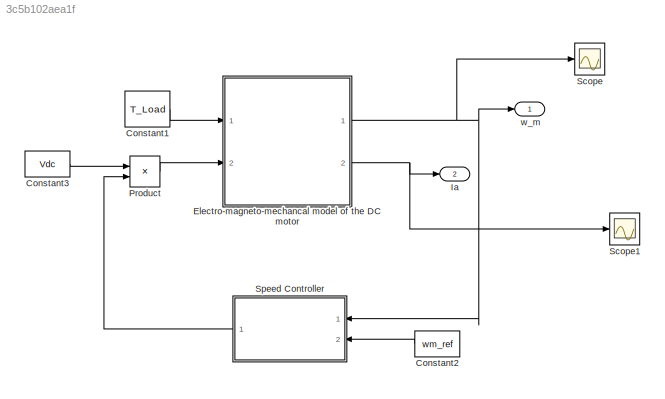
MODEL slx_3c5b102aea1f
KIND model
CONFIG AbsTol = auto
CONFIG EnableMultiTasking = off
CONFIG FixedStep = auto
CONFIG MaxStep = auto
CONFIG MinStep = auto
CONFIG RelTol = 1e-3
CONFIG SampleTimeConstraint = Unconstrained
CONFIG Solver = VariableStepAuto
CONFIG SolverName = VariableStepAuto
CONFIG StartTime = 0.0
CONFIG StopTime = 1
BLOCK [Constant] Constant1
  Value = T_Load
BLOCK [Constant] Constant2
  Value = wm_ref
BLOCK [Constant] Constant3
  Value = Vdc
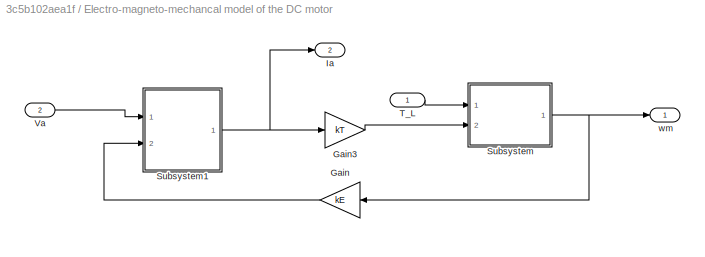
BLOCK [SubSystem] Electro-magneto-mechancal model of the DC motor
  Ports = [2, 2]
  RequestExecContextInheritance = off
BLOCK [Gain] Electro-magneto-mechancal model of the DC motor/Gain
  Gain = kE
  OutDataTypeStr = Inherit: Inherit via internal rule
  ParamDataTypeStr = Inherit: Inherit via internal rule
  SaturateOnIntegerOverflow = off
BLOCK [Gain] Electro-magneto-mechancal model of the DC motor/Gain3
  Gain = kT
  OutDataTypeStr = Inherit: Inherit via internal rule
  ParamDataTypeStr = Inherit: Inherit via internal rule
  SaturateOnIntegerOverflow = off
BLOCK [Outport] Electro-magneto-mechancal model of the DC motor/Ia
  IconDisplay = Port number
  Port = 2
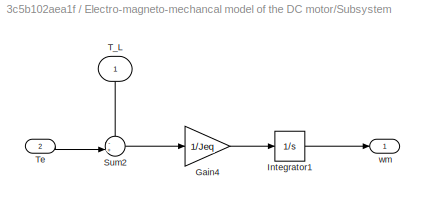
BLOCK [SubSystem] Electro-magneto-mechancal model of the DC motor/Subsystem
  Ports = [2, 1]
  RequestExecContextInheritance = off
BLOCK [Gain] Electro-magneto-mechancal model of the DC motor/Subsystem/Gain4
  Gain = 1/Jeq
  OutDataTypeStr = Inherit: Inherit via internal rule
  ParamDataTypeStr = Inherit: Inherit via internal rule
  SaturateOnIntegerOverflow = off
BLOCK [Integrator] Electro-magneto-mechancal model of the DC motor/Subsystem/Integrator1
  Ports = [1, 1]
BLOCK [Sum] Electro-magneto-mechancal model of the DC motor/Subsystem/Sum2
  IconShape = round
  InputSameDT = off
  Inputs = -+|
  OutDataTypeStr = Inherit: Inherit via internal rule
  Ports = [2, 1]
  SaturateOnIntegerOverflow = off
BLOCK [Inport] Electro-magneto-mechancal model of the DC motor/Subsystem/T_L
  IconDisplay = Port number
BLOCK [Inport] Electro-magneto-mechancal model of the DC motor/Subsystem/Te
  IconDisplay = Port number
  Port = 2
BLOCK [Outport] Electro-magneto-mechancal model of the DC motor/Subsystem/wm
  IconDisplay = Port number
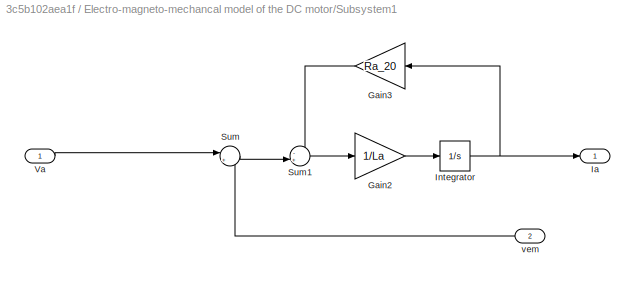
BLOCK [SubSystem] Electro-magneto-mechancal model of the DC motor/Subsystem1
  Ports = [2, 1]
  RequestExecContextInheritance = off
BLOCK [Gain] Electro-magneto-mechancal model of the DC motor/Subsystem1/Gain2
  Gain = 1/La
  OutDataTypeStr = Inherit: Inherit via internal rule
  ParamDataTypeStr = Inherit: Inherit via internal rule
  SaturateOnIntegerOverflow = off
BLOCK [Gain] Electro-magneto-mechancal model of the DC motor/Subsystem1/Gain3
  Gain = Ra_20
  OutDataTypeStr = Inherit: Inherit via internal rule
  ParamDataTypeStr = Inherit: Inherit via internal rule
  SaturateOnIntegerOverflow = off
BLOCK [Outport] Electro-magneto-mechancal model of the DC motor/Subsystem1/Ia
  IconDisplay = Port number
BLOCK [Integrator] Electro-magneto-mechancal model of the DC motor/Subsystem1/Integrator
  Ports = [1, 1]
BLOCK [Sum] Electro-magneto-mechancal model of the DC motor/Subsystem1/Sum
  IconShape = round
  InputSameDT = off
  Inputs = |+-
  OutDataTypeStr = Inherit: Inherit via internal rule
  Ports = [2, 1]
  SaturateOnIntegerOverflow = off
BLOCK [Sum] Electro-magneto-mechancal model of the DC motor/Subsystem1/Sum1
  IconShape = round
  InputSameDT = off
  Inputs = -+|
  OutDataTypeStr = Inherit: Inherit via internal rule
  Ports = [2, 1]
  SaturateOnIntegerOverflow = off
BLOCK [Inport] Electro-magneto-mechancal model of the DC motor/Subsystem1/Va
  IconDisplay = Port number
BLOCK [Inport] Electro-magneto-mechancal model of the DC motor/Subsystem1/vem
  IconDisplay = Port number
  Port = 2
BLOCK [Inport] Electro-magneto-mechancal model of the DC motor/T_L
  IconDisplay = Port number
BLOCK [Inport] Electro-magneto-mechancal model of the DC motor/Va
  IconDisplay = Port number
  Port = 2
BLOCK [Outport] Electro-magneto-mechancal model of the DC motor/wm
  IconDisplay = Port number
BLOCK [Outport] Ia
  IconDisplay = Port number
  Port = 2
BLOCK [Product] Product
  InputSameDT = off
  OutDataTypeStr = Inherit: Inherit via internal rule
  Ports = [2, 1]
  RndMeth = Floor
  SaturateOnIntegerOverflow = off
BLOCK [Scope] Scope
  Floating = off
  NumInputPorts = 1
  Ports = [1]
  ScopeSpecificationString = Simulink.scopes.TimeScopeBlockCfg('CurrentConfiguration', extmgr.ConfigurationSet(extmgr.Configuration('Core','General UI',true),extmgr.Configuration('Core','Source UI',true),extmgr.Configuration('Sources','WiredSimulink',true),extmgr.Configuration('Visuals','Time Domain',true,'SerializedDisplays',{struct('MinYLimReal','-1.90474','MaxYLimReal','16.98975','YLabelReal','','MinYLimMag','0.00000','Max...<+1373ch>
BLOCK [Scope] Scope1
  Floating = off
  NumInputPorts = 1
  Ports = [1]
  ScopeSpecificationString = Simulink.scopes.TimeScopeBlockCfg('CurrentConfiguration', extmgr.ConfigurationSet(extmgr.Configuration('Core','General UI',true),extmgr.Configuration('Core','Source UI',true),extmgr.Configuration('Sources','WiredSimulink',true,'DataLoggingVariableName','ScopeData1'),extmgr.Configuration('Visuals','Time Domain',true,'SerializedDisplays',{struct('MinYLimReal','-9.68242','MaxYLimReal','22.57477','YLa...<+1412ch>
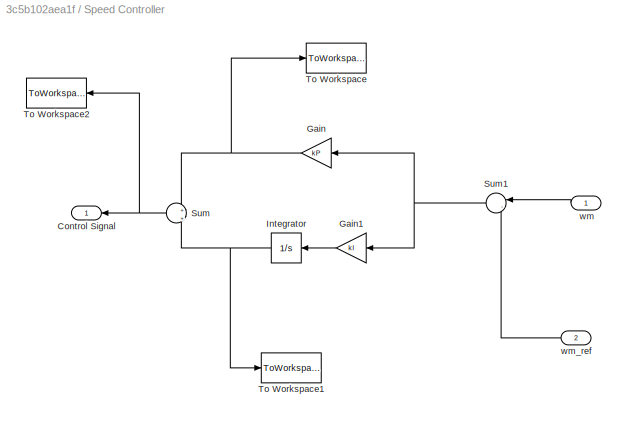
BLOCK [SubSystem] Speed Controller
  Ports = [2, 1]
  RequestExecContextInheritance = off
BLOCK [Outport] Speed Controller/Control Signal
  IconDisplay = Port number
BLOCK [Gain] Speed Controller/Gain
  Gain = kP
  OutDataTypeStr = Inherit: Inherit via internal rule
  ParamDataTypeStr = Inherit: Inherit via internal rule
  SaturateOnIntegerOverflow = off
BLOCK [Gain] Speed Controller/Gain1
  Gain = kI
  OutDataTypeStr = Inherit: Inherit via internal rule
  ParamDataTypeStr = Inherit: Inherit via internal rule
  SaturateOnIntegerOverflow = off
BLOCK [Integrator] Speed Controller/Integrator
  LowerSaturationLimit = -1
  Ports = [1, 1]
  UpperSaturationLimit = 1
BLOCK [Sum] Speed Controller/Sum
  IconShape = round
  InputSameDT = off
  Inputs = +|+
  OutDataTypeStr = Inherit: Inherit via internal rule
  Ports = [2, 1]
  SaturateOnIntegerOverflow = off
BLOCK [Sum] Speed Controller/Sum1
  IconShape = round
  InputSameDT = off
  Inputs = |-+
  OutDataTypeStr = Inherit: Inherit via internal rule
  Ports = [2, 1]
  SaturateOnIntegerOverflow = off
BLOCK [ToWorkspace] Speed Controller/To Workspace
  FixptAsFi = on
  MaxDataPoints = inf
  Ports = [1]
  SampleTime = -1
  SaveFormat = Structure With Time
  VariableName = P_resp
BLOCK [ToWorkspace] Speed Controller/To Workspace1
  FixptAsFi = on
  MaxDataPoints = inf
  Ports = [1]
  SampleTime = -1
  SaveFormat = Structure With Time
  VariableName = I_resp
BLOCK [ToWorkspace] Speed Controller/To Workspace2
  FixptAsFi = on
  MaxDataPoints = inf
  Ports = [1]
  SampleTime = -1
  SaveFormat = Structure With Time
  VariableName = PI_resp
BLOCK [Inport] Speed Controller/wm
  IconDisplay = Port number
BLOCK [Inport] Speed Controller/wm_ref
  IconDisplay = Port number
  Port = 2
BLOCK [Outport] w_m
  IconDisplay = Port number
LINE Constant1:1 -> Electro-magneto-mechancal model of the DC motor:1
LINE Constant2:1 -> Speed Controller:2
LINE Constant3:1 -> Product:1
LINE Electro-magneto-mechancal model of the DC motor/Gain3:1 -> Electro-magneto-mechancal model of the DC motor/Subsystem:2
LINE Electro-magneto-mechancal model of the DC motor/Gain:1 -> Electro-magneto-mechancal model of the DC motor/Subsystem1:2
LINE Electro-magneto-mechancal model of the DC motor/Subsystem/Gain4:1 -> Electro-magneto-mechancal model of the DC motor/Subsystem/Integrator1:1
LINE Electro-magneto-mechancal model of the DC motor/Subsystem/Integrator1:1 -> Electro-magneto-mechancal model of the DC motor/Subsystem/wm:1
LINE Electro-magneto-mechancal model of the DC motor/Subsystem/Sum2:1 -> Electro-magneto-mechancal model of the DC motor/Subsystem/Gain4:1
LINE Electro-magneto-mechancal model of the DC motor/Subsystem/T_L:1 -> Electro-magneto-mechancal model of the DC motor/Subsystem/Sum2:1
LINE Electro-magneto-mechancal model of the DC motor/Subsystem/Te:1 -> Electro-magneto-mechancal model of the DC motor/Subsystem/Sum2:2
LINE Electro-magneto-mechancal model of the DC motor/Subsystem1/Gain2:1 -> Electro-magneto-mechancal model of the DC motor/Subsystem1/Integrator:1
LINE Electro-magneto-mechancal model of the DC motor/Subsystem1/Gain3:1 -> Electro-magneto-mechancal model of the DC motor/Subsystem1/Sum1:1
NET Electro-magneto-mechancal model of the DC motor/Subsystem1/Integrator:1 -> Electro-magneto-mechancal model of the DC motor/Subsystem1/Gain3:1, Electro-magneto-mechancal model of the DC motor/Subsystem1/Ia:1
LINE Electro-magneto-mechancal model of the DC motor/Subsystem1/Sum1:1 -> Electro-magneto-mechancal model of the DC motor/Subsystem1/Gain2:1
LINE Electro-magneto-mechancal model of the DC motor/Subsystem1/Sum:1 -> Electro-magneto-mechancal model of the DC motor/Subsystem1/Sum1:2
LINE Electro-magneto-mechancal model of the DC motor/Subsystem1/Va:1 -> Electro-magneto-mechancal model of the DC motor/Subsystem1/Sum:1
LINE Electro-magneto-mechancal model of the DC motor/Subsystem1/vem:1 -> Electro-magneto-mechancal model of the DC motor/Subsystem1/Sum:2
NET Electro-magneto-mechancal model of the DC motor/Subsystem1:1 -> Electro-magneto-mechancal model of the DC motor/Gain3:1, Electro-magneto-mechancal model of the DC motor/Ia:1
NET Electro-magneto-mechancal model of the DC motor/Subsystem:1 -> Electro-magneto-mechancal model of the DC motor/Gain:1, Electro-magneto-mechancal model of the DC motor/wm:1
LINE Electro-magneto-mechancal model of the DC motor/T_L:1 -> Electro-magneto-mechancal model of the DC motor/Subsystem:1
LINE Electro-magneto-mechancal model of the DC motor/Va:1 -> Electro-magneto-mechancal model of the DC motor/Subsystem1:1
NET Electro-magneto-mechancal model of the DC motor:1 -> Scope:1, Speed Controller:1, w_m:1
NET Electro-magneto-mechancal model of the DC motor:2 -> Ia:1, Scope1:1
LINE Product:1 -> Electro-magneto-mechancal model of the DC motor:2
LINE Speed Controller/Gain1:1 -> Speed Controller/Integrator:1
NET Speed Controller/Gain:1 -> Speed Controller/Sum:1, Speed Controller/To Workspace:1
NET Speed Controller/Integrator:1 -> Speed Controller/Sum:2, Speed Controller/To Workspace1:1
NET Speed Controller/Sum1:1 -> Speed Controller/Gain1:1, Speed Controller/Gain:1
NET Speed Controller/Sum:1 -> Speed Controller/Control Signal:1, Speed Controller/To Workspace2:1
LINE Speed Controller/wm:1 -> Speed Controller/Sum1:1
LINE Speed Controller/wm_ref:1 -> Speed Controller/Sum1:2
LINE Speed Controller:1 -> Product:2
note: NET lines group one-source signal fan-out (src -> all destinations, sorted); 1:1 wires keep LINE
